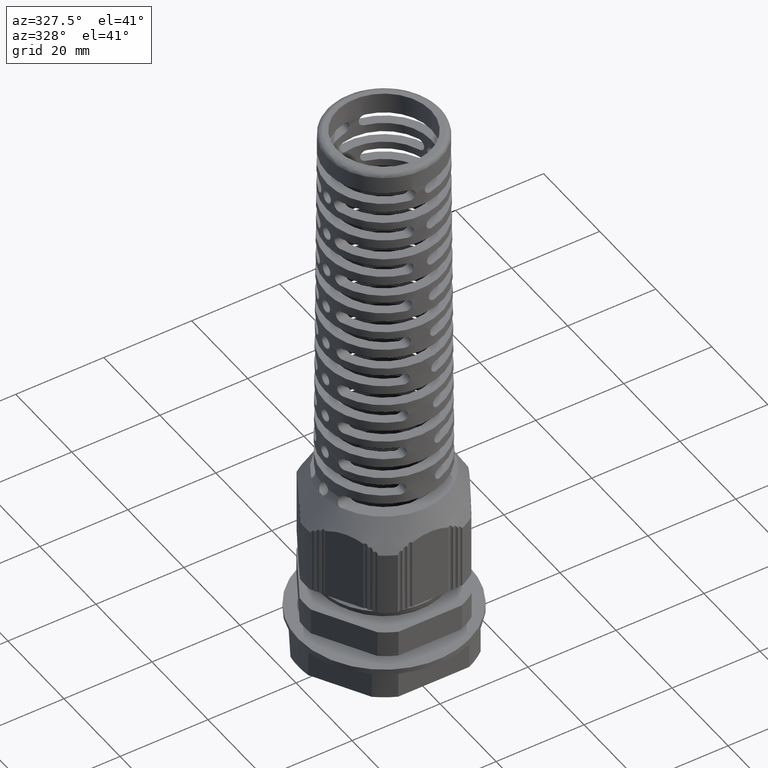
[diagram: clean part render]
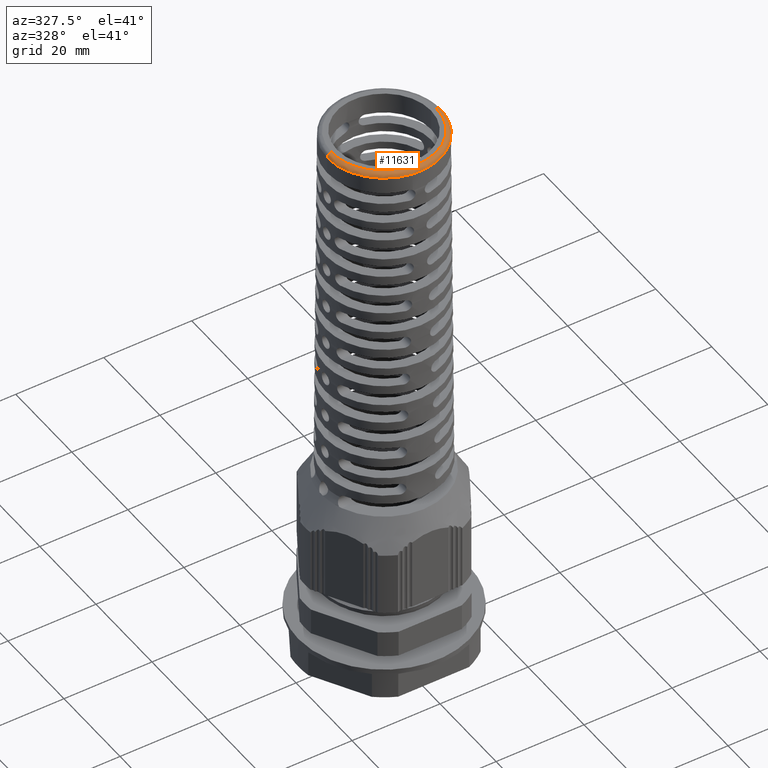
[diagram: same view with one face highlighted and labeled with its STEP entity id]
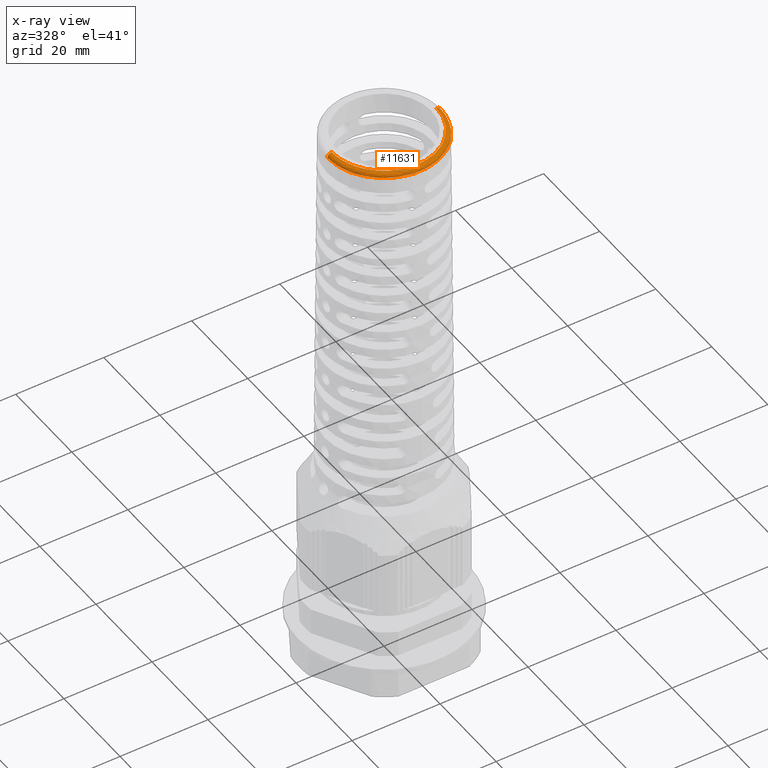
[diagram: x-ray of the same camera — body ghosted, the highlighted face saturated]
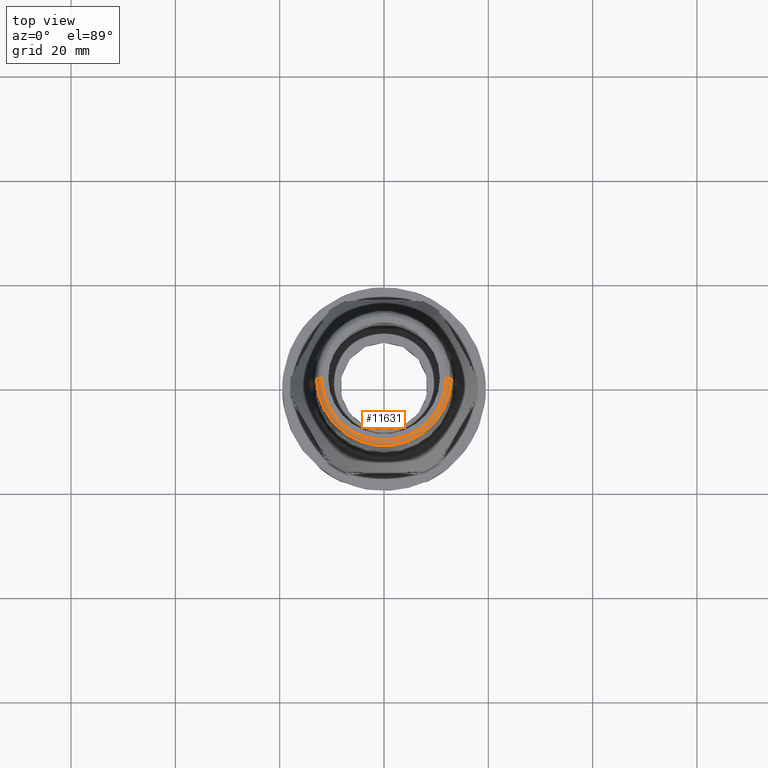
[diagram: same view with one face highlighted and labeled with its STEP entity id]
A machine part, auxiliary view. The second image highlights one B-rep face of the part: STEP entity #11631.
The next image is the same camera in x-ray: the body ghosted, the highlighted face saturated — about 0% of this face is hidden behind the body in this view.
A second angle (top view) of the same face is appended — the face is thin or edge-on in the first view.
In plain terms, the highlighted face is a freeform B-spline surface patch.
Its self-contained STEP definition (entity closure, byte-faithful):
#2780 = CARTESIAN_POINT ( 'NONE',  ( 11.90782129319851500, -23.81564258639702200, 128.9560992939812800 ) ) ;
#2785 = CARTESIAN_POINT ( 'NONE',  ( 11.90782129319852300, -1.247036012253999400E-016, 128.9560992939812800 ) ) ;
#2787 = CARTESIAN_POINT ( 'NONE',  ( 0.0000000000000000000, 0.0000000000000000000, 127.9639511725505500 ) ) ;
#2788 = DIRECTION ( 'NONE',  ( 0.0000000000000000000, 0.0000000000000000000, -1.000000000000000000 ) ) ;
#2808 = DIRECTION ( 'NONE',  ( -1.000000000000000000, 0.0000000000000000000, 2.150296418831742100E-015 ) ) ;
#2815 = CARTESIAN_POINT ( 'NONE',  ( -11.90782129319852300, 1.358076102880127300E-015, 128.9560992939812800 ) ) ;
#2822 = CARTESIAN_POINT ( 'NONE',  ( -11.90782129319851600, -23.81564258639702200, 128.9560992939812800 ) ) ;
#6110 = DIRECTION ( 'NONE',  ( -1.000000000000000000, 1.224646799147352700E-016, 0.0000000000000000000 ) ) ;
#6136 = CARTESIAN_POINT ( 'NONE',  ( -11.90782129319849900, 1.333583921928023900E-015, 127.9560992939812700 ) ) ;
#6138 = DIRECTION ( 'NONE',  ( -1.224646799147353200E-016, -1.000000000000000000, 0.0000000000000000000 ) ) ;
#6198 = CARTESIAN_POINT ( 'NONE',  ( 11.90782129319849900, -1.247036012253999400E-016, 127.9560992939812700 ) ) ;
#6199 = DIRECTION ( 'NONE',  ( 0.0000000000000000000, 1.000000000000000000, 0.0000000000000000000 ) ) ;
#6200 = DIRECTION ( 'NONE',  ( 1.000000000000000000, 0.0000000000000000000, 0.0000000000000000000 ) ) ;
#7387 = CARTESIAN_POINT ( 'NONE',  ( -12.48996725725554700, 1.404876241079924900E-015, 128.9560992939812800 ) ) ;
#7389 = FACE_OUTER_BOUND ( 'NONE', #18448, .T. ) ;
#7390 = CARTESIAN_POINT ( 'NONE',  ( -12.48996725725555000, -24.97993451451107900, 128.9560992939812800 ) ) ;
#7392 = CARTESIAN_POINT ( 'NONE',  ( -12.90321952730546200, 1.455485048055626100E-015, 128.5460791911003500 ) ) ;
#7393 = CARTESIAN_POINT ( 'NONE',  ( -11.90782129319851500, 1.333583921928025700E-015, 128.9560992939812800 ) ) ;
#7394 = CARTESIAN_POINT ( 'NONE',  ( 12.90321952730545600, -25.80643905461091900, 128.5460791911003200 ) ) ;
#7395 = CARTESIAN_POINT ( 'NONE',  ( -12.90321952730546900, -25.80643905461091900, 128.5460791911003200 ) ) ;
#7396 = CARTESIAN_POINT ( 'NONE',  ( -12.90779046672483700, -25.81558093344966000, 127.9639511725505500 ) ) ;
#7397 = CARTESIAN_POINT ( 'NONE',  ( -11.90782129319851800, -23.81564258639702600, 128.9560992939812500 ) ) ;
#7398 = CARTESIAN_POINT ( 'NONE',  ( 12.90779046672482600, -25.81558093344966300, 127.9639511725505500 ) ) ;
#7399 = CARTESIAN_POINT ( 'NONE',  ( 11.90782129319850900, -23.81564258639702600, 128.9560992939812500 ) ) ;
#7404 = CARTESIAN_POINT ( 'NONE',  ( -12.90779046672483500, 1.456044826688529000E-015, 127.9639511725505500 ) ) ;
#7410 = CARTESIAN_POINT ( 'NONE',  ( 12.48996725725553800, -24.97993451451109000, 128.9560992939812800 ) ) ;
#7414 = CARTESIAN_POINT ( 'NONE',  ( 12.48996725725554700, -3.183863285836049600E-015, 128.9560992939812800 ) ) ;
#7416 = CARTESIAN_POINT ( 'NONE',  ( 11.90782129319851500, -3.041278647532251200E-015, 128.9560992939812800 ) ) ;
#7418 = CARTESIAN_POINT ( 'NONE',  ( 12.90321952730546200, -3.285080899787452400E-015, 128.5460791911003500 ) ) ;
#7420 = CARTESIAN_POINT ( 'NONE',  ( 12.90779046672483500, -3.286200457053257800E-015, 127.9639511725505500 ) ) ;
#10396 = CIRCLE ( 'NONE', #10405, 1.000000000000004400 ) ;
#10405 = AXIS2_PLACEMENT_3D ( 'NONE', #6136, #6138, #6110 ) ;
#10544 = AXIS2_PLACEMENT_3D ( 'NONE', #6198, #6199, #6200 ) ;
#10564 = CIRCLE ( 'NONE', #10565, 12.90779046672483500 ) ;
#10565 = AXIS2_PLACEMENT_3D ( 'NONE', #2787, #2788, #2808 ) ;
#10573 = CIRCLE ( 'NONE', #10544, 1.000000000000004400 ) ;
#11631 = ADVANCED_FACE ( 'NONE', ( #7389 ), #20158, .T. ) ;
#11772 = EDGE_CURVE ( 'NONE', #18611, #18656, #10396, .T. ) ;
#11779 = EDGE_CURVE ( 'NONE', #18640, #18667, #10573, .T. ) ;
#11795 = EDGE_CURVE ( 'NONE', #18640, #18611, #20160, .T. ) ;
#11797 = EDGE_CURVE ( 'NONE', #18667, #18656, #10564, .T. ) ;
#12043 = ORIENTED_EDGE ( 'NONE', *, *, #11797, .F. ) ;
#12081 = ORIENTED_EDGE ( 'NONE', *, *, #11779, .F. ) ;
#12082 = ORIENTED_EDGE ( 'NONE', *, *, #11772, .T. ) ;
#12097 = ORIENTED_EDGE ( 'NONE', *, *, #11795, .T. ) ;
#18448 = EDGE_LOOP ( 'NONE', ( #12097, #12082, #12043, #12081 ) ) ;
#18611 = VERTEX_POINT ( 'NONE', #19891 ) ;
#18640 = VERTEX_POINT ( 'NONE', #19996 ) ;
#18656 = VERTEX_POINT ( 'NONE', #20002 ) ;
#18667 = VERTEX_POINT ( 'NONE', #19979 ) ;
#19891 = CARTESIAN_POINT ( 'NONE',  ( -11.90782129319852300, 1.358076102880127300E-015, 128.9560992939812800 ) ) ;
#19979 = CARTESIAN_POINT ( 'NONE',  ( 12.90779046672483500, 1.620658911831652200E-015, 127.9639511725505500 ) ) ;
#19996 = CARTESIAN_POINT ( 'NONE',  ( 11.90782129319852300, -1.247036012253999400E-016, 128.9560992939812800 ) ) ;
#20002 = CARTESIAN_POINT ( 'NONE',  ( -12.90779046672483500, 0.0000000000000000000, 127.9639511725505800 ) ) ;
#20158 =( BOUNDED_SURFACE ( )  B_SPLINE_SURFACE ( 3, 3, ( 
 ( #7393, #7397, #7399, #7416 ),
 ( #7387, #7390, #7410, #7414 ),
 ( #7392, #7395, #7394, #7418 ),
 ( #7404, #7396, #7398, #7420 ) ),
 .UNSPECIFIED., .F., .F., .T. ) 
 B_SPLINE_SURFACE_WITH_KNOTS ( ( 4, 4 ),
 ( 4, 4 ),
 ( 0.0000000000000000000, 1.000000000000000000 ),
 ( 0.0000000000000000000, 1.000000000000000000 ),
 .UNSPECIFIED. ) 
 GEOMETRIC_REPRESENTATION_ITEM ( )  RATIONAL_B_SPLINE_SURFACE ( (
 ( 1.000000000000000000, 0.3333333333333334300, 0.3333333333333334300, 1.000000000000000000),
 ( 0.8065849409655836400, 0.2688616469885279400, 0.2688616469885279400, 0.8065849409655836400),
 ( 0.8065849409655836400, 0.2688616469885279400, 0.2688616469885279400, 0.8065849409655836400),
 ( 1.000000000000000000, 0.3333333333333334300, 0.3333333333333334300, 1.000000000000000000) ) ) 
 REPRESENTATION_ITEM ( '' )  SURFACE ( )  );
#20160 =( BOUNDED_CURVE ( )  B_SPLINE_CURVE ( 3, ( #2785, #2780, #2822, #2815 ),
 .UNSPECIFIED., .F., .T. ) 
 B_SPLINE_CURVE_WITH_KNOTS ( ( 4, 4 ),
 ( 0.0000000000000000000, 1.000000000000000000 ),
 .UNSPECIFIED. ) 
 CURVE ( )  GEOMETRIC_REPRESENTATION_ITEM ( )  RATIONAL_B_SPLINE_CURVE ( ( 1.000000000000000000, 0.3333333333333333700, 0.3333333333333333700, 1.000000000000000000 ) ) 
 REPRESENTATION_ITEM ( '' )  );